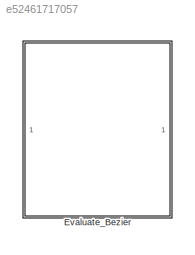
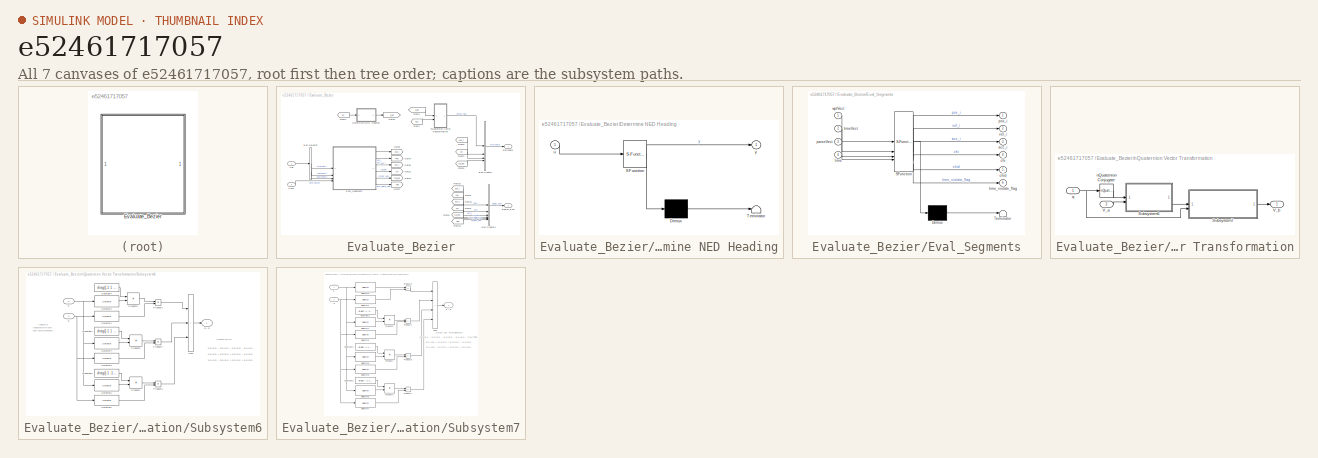
[diagram: thumbnail index - all 7 canvases of the model, root first then tree order]
MODEL slx_e52461717057
KIND library
CONFIG AbsTol = auto
CONFIG EnableMultiTasking = off
CONFIG FixedStep = auto
CONFIG MaxStep = auto
CONFIG MinStep = auto
CONFIG RelTol = 1e-3
CONFIG SampleTimeConstraint = Unconstrained
CONFIG SolverName = VariableStepAuto
CONFIG StartTime = 0.0
CONFIG StopTime = 10.0
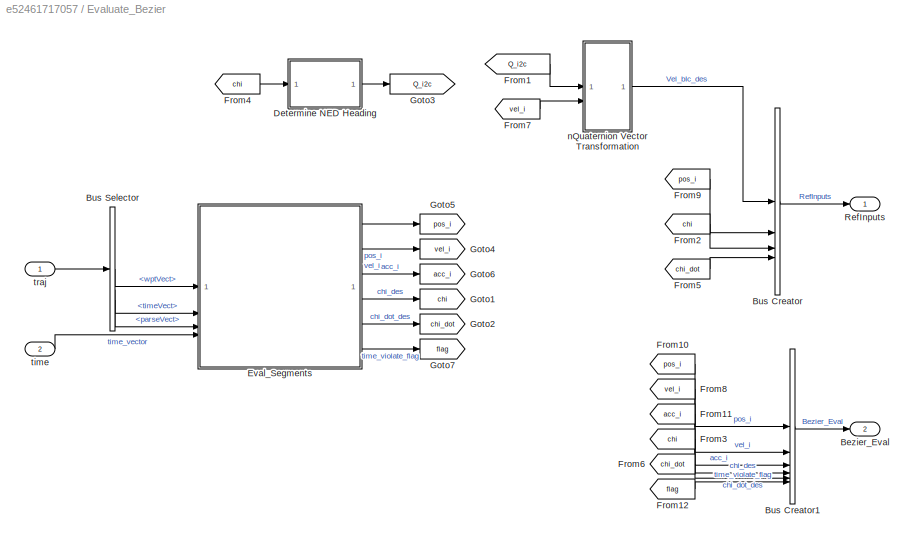
BLOCK [SubSystem] Evaluate_Bezier
BLOCK [Outport] Evaluate_Bezier/Bezier_Eval
  Port = 2
BLOCK [BusCreator] Evaluate_Bezier/Bus Creator
  DisplayOption = bar
  InheritFromInputs = on
  Inputs = 4
BLOCK [BusCreator] Evaluate_Bezier/Bus Creator1
  DisplayOption = bar
  InheritFromInputs = on
  Inputs = 6
BLOCK [BusSelector] Evaluate_Bezier/Bus Selector
  OutputSignals = wptVect,timeVect,parseVect
BLOCK [SubSystem] Evaluate_Bezier/Determine NED Heading
  ErrorFcn = Stateflow.Translate.translate
  PermitHierarchicalResolution = ExplicitOnly
  SFBlockType = MATLAB Function
  TreatAsAtomicUnit = on
BLOCK [Demux] Evaluate_Bezier/Determine NED Heading/ Demux 
  Outputs = 1
BLOCK [S-Function] Evaluate_Bezier/Determine NED Heading/ SFunction 
  EnableBusSupport = off
  FunctionName = sf_sfun
  PortCounts = [1 2]
  SFcnIsStateOwnerBlock = off
  SFunctionDeploymentMode = off
  Tag = Stateflow S-Function 4
BLOCK [Terminator] Evaluate_Bezier/Determine NED Heading/ Terminator 
BLOCK [Inport] Evaluate_Bezier/Determine NED Heading/u
BLOCK [Outport] Evaluate_Bezier/Determine NED Heading/y
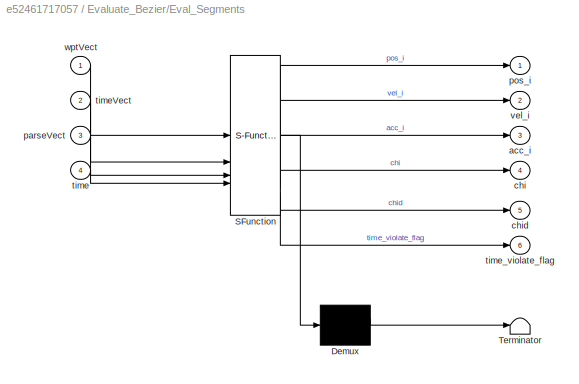
BLOCK [SubSystem] Evaluate_Bezier/Eval_Segments
  ErrorFcn = Stateflow.Translate.translate
  PermitHierarchicalResolution = ExplicitOnly
  SFBlockType = MATLAB Function
  TreatAsAtomicUnit = on
BLOCK [Demux] Evaluate_Bezier/Eval_Segments/ Demux 
  Outputs = 1
BLOCK [S-Function] Evaluate_Bezier/Eval_Segments/ SFunction 
  EnableBusSupport = off
  FunctionName = sf_sfun
  PortCounts = [4 7]
  SFcnIsStateOwnerBlock = off
  SFunctionDeploymentMode = off
  Tag = Stateflow S-Function 22
BLOCK [Terminator] Evaluate_Bezier/Eval_Segments/ Terminator 
BLOCK [Outport] Evaluate_Bezier/Eval_Segments/acc_i
  Port = 3
BLOCK [Outport] Evaluate_Bezier/Eval_Segments/chi
  Port = 4
BLOCK [Outport] Evaluate_Bezier/Eval_Segments/chid
  Port = 5
BLOCK [Inport] Evaluate_Bezier/Eval_Segments/parseVect
  Port = 3
BLOCK [Outport] Evaluate_Bezier/Eval_Segments/pos_i
BLOCK [Inport] Evaluate_Bezier/Eval_Segments/time
  Port = 4
BLOCK [Inport] Evaluate_Bezier/Eval_Segments/timeVect
  Port = 2
BLOCK [Outport] Evaluate_Bezier/Eval_Segments/time_violate_flag
  Port = 6
BLOCK [Outport] Evaluate_Bezier/Eval_Segments/vel_i
  Port = 2
BLOCK [Inport] Evaluate_Bezier/Eval_Segments/wptVect
BLOCK [From] Evaluate_Bezier/From1
  GotoTag = Q_i2c
BLOCK [From] Evaluate_Bezier/From10
  GotoTag = pos_i
BLOCK [From] Evaluate_Bezier/From11
  GotoTag = acc_i
BLOCK [From] Evaluate_Bezier/From12
  GotoTag = flag
BLOCK [From] Evaluate_Bezier/From2
  GotoTag = chi
BLOCK [From] Evaluate_Bezier/From3
  GotoTag = chi
BLOCK [From] Evaluate_Bezier/From4
  GotoTag = chi
BLOCK [From] Evaluate_Bezier/From5
  GotoTag = chi_dot
BLOCK [From] Evaluate_Bezier/From6
  GotoTag = chi_dot
BLOCK [From] Evaluate_Bezier/From7
  GotoTag = vel_i
BLOCK [From] Evaluate_Bezier/From8
  GotoTag = vel_i
BLOCK [From] Evaluate_Bezier/From9
  GotoTag = pos_i
BLOCK [Goto] Evaluate_Bezier/Goto1
  GotoTag = chi
BLOCK [Goto] Evaluate_Bezier/Goto2
  GotoTag = chi_dot
BLOCK [Goto] Evaluate_Bezier/Goto3
  GotoTag = Q_i2c
BLOCK [Goto] Evaluate_Bezier/Goto4
  GotoTag = vel_i
BLOCK [Goto] Evaluate_Bezier/Goto5
  GotoTag = pos_i
BLOCK [Goto] Evaluate_Bezier/Goto6
  GotoTag = acc_i
BLOCK [Goto] Evaluate_Bezier/Goto7
  GotoTag = flag
BLOCK [Outport] Evaluate_Bezier/RefInputs
BLOCK [SubSystem] Evaluate_Bezier/nQuaternion Vector Transformation
BLOCK [SubSystem] Evaluate_Bezier/nQuaternion Vector Transformation/Subsystem6
BLOCK [Constant] Evaluate_Bezier/nQuaternion Vector Transformation/Subsystem6/Constant1
  Value = diag([-1 1 -1 1])
  VectorParams1D = off
BLOCK [Constant] Evaluate_Bezier/nQuaternion Vector Transformation/Subsystem6/Constant3
  Value = diag([-1 -1 1 -1])
  VectorParams1D = off
BLOCK [Constant] Evaluate_Bezier/nQuaternion Vector Transformation/Subsystem6/Constant4
  Value = diag([-1 1 1 1])
  VectorParams1D = off
BLOCK [Product] Evaluate_Bezier/nQuaternion Vector Transformation/Subsystem6/Product1
  Multiplication = Matrix(*)
  RndMeth = Zero
BLOCK [Product] Evaluate_Bezier/nQuaternion Vector Transformation/Subsystem6/Product3
  RndMeth = Zero
BLOCK [Product] Evaluate_Bezier/nQuaternion Vector Transformation/Subsystem6/Product4
  RndMeth = Zero
BLOCK [Product] Evaluate_Bezier/nQuaternion Vector Transformation/Subsystem6/Product5
  Multiplication = Matrix(*)
  RndMeth = Zero
BLOCK [Product] Evaluate_Bezier/nQuaternion Vector Transformation/Subsystem6/Product6
  RndMeth = Zero
BLOCK [Product] Evaluate_Bezier/nQuaternion Vector Transformation/Subsystem6/Product8
  Multiplication = Matrix(*)
  RndMeth = Zero
BLOCK [Selector] Evaluate_Bezier/nQuaternion Vector Transformation/Subsystem6/Selector1
  IndexOptions = Index vector (dialog),Select all
  Indices = [1 1 2 3],1
  InputPortWidth = 3
  NumberOfDimensions = 2
  OutputSizes = 1,1
BLOCK [Selector] Evaluate_Bezier/nQuaternion Vector Transformation/Subsystem6/Selector2
  IndexOptions = Index vector (dialog),Select all
  Indices = [2 1 1 1],1
  InputPortWidth = 3
  NumberOfDimensions = 2
  OutputSizes = 1,1
BLOCK [Selector] Evaluate_Bezier/nQuaternion Vector Transformation/Subsystem6/Selector3
  IndexOptions = Index vector (dialog),Select all
  Indices = [2 3 3 2],1
  InputPortWidth = 3
  NumberOfDimensions = 2
  OutputSizes = 1,1
BLOCK [Selector] Evaluate_Bezier/nQuaternion Vector Transformation/Subsystem6/Selector4
  IndexOptions = Index vector (dialog),Select all
  Indices = [3 3 2 2],1
  InputPortWidth = 3
  NumberOfDimensions = 2
  OutputSizes = 1,1
BLOCK [Selector] Evaluate_Bezier/nQuaternion Vector Transformation/Subsystem6/Selector5
  IndexOptions = Index vector (dialog),Select all
  Indices = [3 2 1 1],1
  InputPortWidth = 3
  NumberOfDimensions = 2
  OutputSizes = 1,1
BLOCK [Selector] Evaluate_Bezier/nQuaternion Vector Transformation/Subsystem6/Selector6
  IndexOptions = Index vector (dialog),Select all
  Indices = [4 4 4 3],1
  InputPortWidth = 3
  NumberOfDimensions = 2
  OutputSizes = 1,1
BLOCK [Sum] Evaluate_Bezier/nQuaternion Vector Transformation/Subsystem6/Sum
  IconShape = rectangular
  Inputs = +++
BLOCK [Inport] Evaluate_Bezier/nQuaternion Vector Transformation/Subsystem6/p
  PortDimensions = [4,nQuat]
BLOCK [Outport] Evaluate_Bezier/nQuaternion Vector Transformation/Subsystem6/p * q
  PortDimensions = [4,nQuat]
BLOCK [Inport] Evaluate_Bezier/nQuaternion Vector Transformation/Subsystem6/q
  Port = 2
  PortDimensions = [3,nQuat]
BLOCK [SubSystem] Evaluate_Bezier/nQuaternion Vector Transformation/Subsystem7
BLOCK [Constant] Evaluate_Bezier/nQuaternion Vector Transformation/Subsystem7/Constant1
  Value = diag([ 1 -1 1])
  VectorParams1D = off
BLOCK [Constant] Evaluate_Bezier/nQuaternion Vector Transformation/Subsystem7/Constant2
  Value = diag([ -1 1 1])
  VectorParams1D = off
BLOCK [Constant] Evaluate_Bezier/nQuaternion Vector Transformation/Subsystem7/Constant3
  Value = diag([ 1 1 -1])
  VectorParams1D = off
BLOCK [Product] Evaluate_Bezier/nQuaternion Vector Transformation/Subsystem7/Product1
  Multiplication = Matrix(*)
  RndMeth = Zero
BLOCK [Product] Evaluate_Bezier/nQuaternion Vector Transformation/Subsystem7/Product2
  Multiplication = Matrix(*)
  RndMeth = Zero
BLOCK [Product] Evaluate_Bezier/nQuaternion Vector Transformation/Subsystem7/Product3
  RndMeth = Zero
BLOCK [Product] Evaluate_Bezier/nQuaternion Vector Transformation/Subsystem7/Product4
  RndMeth = Zero
BLOCK [Product] Evaluate_Bezier/nQuaternion Vector Transformation/Subsystem7/Product5
  Multiplication = Matrix(*)
  RndMeth = Zero
BLOCK [Product] Evaluate_Bezier/nQuaternion Vector Transformation/Subsystem7/Product6
  RndMeth = Zero
BLOCK [Product] Evaluate_Bezier/nQuaternion Vector Transformation/Subsystem7/Product7
  RndMeth = Zero
BLOCK [Selector] Evaluate_Bezier/nQuaternion Vector Transformation/Subsystem7/Selector1
  IndexOptions = Index vector (dialog),Select all
  Indices = [ 2 3 4],1
  InputPortWidth = 3
  NumberOfDimensions = 2
  OutputSizes = 1,1
BLOCK [Selector] Evaluate_Bezier/nQuaternion Vector Transformation/Subsystem7/Selector2
  IndexOptions = Index vector (dialog),Select all
  Indices = [ 1 1 1],1
  InputPortWidth = 3
  NumberOfDimensions = 2
  OutputSizes = 1,1
BLOCK [Selector] Evaluate_Bezier/nQuaternion Vector Transformation/Subsystem7/Selector3
  IndexOptions = Index vector (dialog),Select all
  Indices = [ 1 4 3],1
  InputPortWidth = 3
  NumberOfDimensions = 2
  OutputSizes = 1,1
BLOCK [Selector] Evaluate_Bezier/nQuaternion Vector Transformation/Subsystem7/Selector4
  IndexOptions = Index vector (dialog),Select all
  Indices = [ 2 2 2],1
  InputPortWidth = 3
  NumberOfDimensions = 2
  OutputSizes = 1,1
BLOCK [Selector] Evaluate_Bezier/nQuaternion Vector Transformation/Subsystem7/Selector5
  IndexOptions = Index vector (dialog),Select all
  Indices = [ 4 1 2],1
  InputPortWidth = 3
  NumberOfDimensions = 2
  OutputSizes = 1,1
BLOCK [Selector] Evaluate_Bezier/nQuaternion Vector Transformation/Subsystem7/Selector6
  IndexOptions = Index vector (dialog),Select all
  Indices = [ 3 3 3],1
  InputPortWidth = 3
  NumberOfDimensions = 2
  OutputSizes = 1,1
BLOCK [Selector] Evaluate_Bezier/nQuaternion Vector Transformation/Subsystem7/Selector7
  IndexOptions = Index vector (dialog),Select all
  Indices = [ 3 2 1],1
  InputPortWidth = 3
  NumberOfDimensions = 2
  OutputSizes = 1,1
BLOCK [Selector] Evaluate_Bezier/nQuaternion Vector Transformation/Subsystem7/Selector8
  IndexOptions = Index vector (dialog),Select all
  Indices = [4 4 4],1
  InputPortWidth = 3
  NumberOfDimensions = 2
  OutputSizes = 1,1
BLOCK [Sum] Evaluate_Bezier/nQuaternion Vector Transformation/Subsystem7/Sum
  IconShape = rectangular
  Inputs = ++++
BLOCK [Inport] Evaluate_Bezier/nQuaternion Vector Transformation/Subsystem7/p
  PortDimensions = [4,nQuat]
BLOCK [Outport] Evaluate_Bezier/nQuaternion Vector Transformation/Subsystem7/p * q
  PortDimensions = [3,nQuat]
BLOCK [Inport] Evaluate_Bezier/nQuaternion Vector Transformation/Subsystem7/q
  Port = 2
  PortDimensions = [4,nQuat]
BLOCK [Inport] Evaluate_Bezier/nQuaternion Vector Transformation/V_a
  Port = 2
  PortDimensions = [3,tlen_max]
  VarSizeSig = No
BLOCK [Outport] Evaluate_Bezier/nQuaternion Vector Transformation/V_b
  PortDimensions = [3,tlen_max]
  VarSizeSig = No
BLOCK [Reference] Evaluate_Bezier/nQuaternion Vector Transformation/nQuaternion Conjugate  REF=starslibMathOperations/nQuaternion Conjugate
  SourceBlock = starslibMathOperations/nQuaternion Conjugate
  SourceProductName = STARS Blockset
  SourceType = nQuaternion Conjugate
BLOCK [Inport] Evaluate_Bezier/nQuaternion Vector Transformation/q
  PortDimensions = [4,tlen_max]
  VarSizeSig = No
BLOCK [Inport] Evaluate_Bezier/time
  Port = 2
BLOCK [Inport] Evaluate_Bezier/traj
ANNOTATION Evaluate_Bezier/nQuaternion Vector Transformation/Subsystem6: Assume q inputted with only last three elements
ANNOTATION Evaluate_Bezier/nQuaternion Vector Transformation/Subsystem6: Assume q(1)=0
ANNOTATION Evaluate_Bezier/nQuaternion Vector Transformation/Subsystem6: p(1)*q(1) - p(2)*q(2) - p(3)*q(3) - p(4)*q(4) p(1)*q(2) + p(2)*q(1) + p(3)*q(4) - p(4)*q(3) p(1)*q(3) - p(2)*q(4) + p(3)*q(1) + p(4)*q(2) p(1)*q(4) + p(2)*q(3) - p(3)*q(2) + p(4)*q(1)
ANNOTATION Evaluate_Bezier/nQuaternion Vector Transformation/Subsystem7: Output Last Three Elements
ANNOTATION Evaluate_Bezier/nQuaternion Vector Transformation/Subsystem7: p(1)*q(1) - p(2)*q(2) - p(3)*q(3) - p(4)*q(4) : OMITTED p(1)*q(2) + p(2)*q(1) + p(3)*q(4) - p(4)*q(3) p(1)*q(3) - p(2)*q(4) + p(3)*q(1) + p(4)*q(2) p(1)*q(4) + p(2)*q(3) - p(3)*q(2) + p(4)*q(1)
LINE Evaluate_Bezier/Bus Creator1:1 -> Evaluate_Bezier/Bezier_Eval:1
LINE Evaluate_Bezier/Bus Creator:1 -> Evaluate_Bezier/RefInputs:1
LINE Evaluate_Bezier/Bus Selector:1 -> Evaluate_Bezier/Eval_Segments:1
LINE Evaluate_Bezier/Bus Selector:2 -> Evaluate_Bezier/Eval_Segments:2
LINE Evaluate_Bezier/Bus Selector:3 -> Evaluate_Bezier/Eval_Segments:3
LINE Evaluate_Bezier/Determine NED Heading:1 -> Evaluate_Bezier/Goto3:1
LINE Evaluate_Bezier/Eval_Segments:1 -> Evaluate_Bezier/Goto5:1
LINE Evaluate_Bezier/Eval_Segments:2 -> Evaluate_Bezier/Goto4:1
LINE Evaluate_Bezier/Eval_Segments:3 -> Evaluate_Bezier/Goto6:1
LINE Evaluate_Bezier/Eval_Segments:4 -> Evaluate_Bezier/Goto1:1
LINE Evaluate_Bezier/Eval_Segments:5 -> Evaluate_Bezier/Goto2:1
LINE Evaluate_Bezier/Eval_Segments:6 -> Evaluate_Bezier/Goto7:1
LINE Evaluate_Bezier/From10:1 -> Evaluate_Bezier/Bus Creator1:1
LINE Evaluate_Bezier/From11:1 -> Evaluate_Bezier/Bus Creator1:3
LINE Evaluate_Bezier/From12:1 -> Evaluate_Bezier/Bus Creator1:6
LINE Evaluate_Bezier/From1:1 -> Evaluate_Bezier/nQuaternion Vector Transformation:1
LINE Evaluate_Bezier/From2:1 -> Evaluate_Bezier/Bus Creator:3
LINE Evaluate_Bezier/From3:1 -> Evaluate_Bezier/Bus Creator1:4
LINE Evaluate_Bezier/From4:1 -> Evaluate_Bezier/Determine NED Heading:1
LINE Evaluate_Bezier/From5:1 -> Evaluate_Bezier/Bus Creator:4
LINE Evaluate_Bezier/From6:1 -> Evaluate_Bezier/Bus Creator1:5
LINE Evaluate_Bezier/From7:1 -> Evaluate_Bezier/nQuaternion Vector Transformation:2
LINE Evaluate_Bezier/From8:1 -> Evaluate_Bezier/Bus Creator1:2
LINE Evaluate_Bezier/From9:1 -> Evaluate_Bezier/Bus Creator:2
LINE Evaluate_Bezier/nQuaternion Vector Transformation/Subsystem6/Constant1:1 -> Evaluate_Bezier/nQuaternion Vector Transformation/Subsystem6/Product5:1
LINE Evaluate_Bezier/nQuaternion Vector Transformation/Subsystem6/Constant3:1 -> Evaluate_Bezier/nQuaternion Vector Transformation/Subsystem6/Product1:1
LINE Evaluate_Bezier/nQuaternion Vector Transformation/Subsystem6/Constant4:1 -> Evaluate_Bezier/nQuaternion Vector Transformation/Subsystem6/Product8:1
LINE Evaluate_Bezier/nQuaternion Vector Transformation/Subsystem6/Product1:1 -> Evaluate_Bezier/nQuaternion Vector Transformation/Subsystem6/Product6:1
LINE Evaluate_Bezier/nQuaternion Vector Transformation/Subsystem6/Product3:1 -> Evaluate_Bezier/nQuaternion Vector Transformation/Subsystem6/Sum:1
LINE Evaluate_Bezier/nQuaternion Vector Transformation/Subsystem6/Product4:1 -> Evaluate_Bezier/nQuaternion Vector Transformation/Subsystem6/Sum:2
LINE Evaluate_Bezier/nQuaternion Vector Transformation/Subsystem6/Product5:1 -> Evaluate_Bezier/nQuaternion Vector Transformation/Subsystem6/Product4:1
LINE Evaluate_Bezier/nQuaternion Vector Transformation/Subsystem6/Product6:1 -> Evaluate_Bezier/nQuaternion Vector Transformation/Subsystem6/Sum:3
LINE Evaluate_Bezier/nQuaternion Vector Transformation/Subsystem6/Product8:1 -> Evaluate_Bezier/nQuaternion Vector Transformation/Subsystem6/Product3:1
LINE Evaluate_Bezier/nQuaternion Vector Transformation/Subsystem6/Selector1:1 -> Evaluate_Bezier/nQuaternion Vector Transformation/Subsystem6/Product3:2
LINE Evaluate_Bezier/nQuaternion Vector Transformation/Subsystem6/Selector2:1 -> Evaluate_Bezier/nQuaternion Vector Transformation/Subsystem6/Product8:2
LINE Evaluate_Bezier/nQuaternion Vector Transformation/Subsystem6/Selector3:1 -> Evaluate_Bezier/nQuaternion Vector Transformation/Subsystem6/Product4:2
LINE Evaluate_Bezier/nQuaternion Vector Transformation/Subsystem6/Selector4:1 -> Evaluate_Bezier/nQuaternion Vector Transformation/Subsystem6/Product5:2
LINE Evaluate_Bezier/nQuaternion Vector Transformation/Subsystem6/Selector5:1 -> Evaluate_Bezier/nQuaternion Vector Transformation/Subsystem6/Product6:2
LINE Evaluate_Bezier/nQuaternion Vector Transformation/Subsystem6/Selector6:1 -> Evaluate_Bezier/nQuaternion Vector Transformation/Subsystem6/Product1:2
LINE Evaluate_Bezier/nQuaternion Vector Transformation/Subsystem6/Sum:1 -> Evaluate_Bezier/nQuaternion Vector Transformation/Subsystem6/p * q:1
NET Evaluate_Bezier/nQuaternion Vector Transformation/Subsystem6/p:1 -> Evaluate_Bezier/nQuaternion Vector Transformation/Subsystem6/Selector2:1, Evaluate_Bezier/nQuaternion Vector Transformation/Subsystem6/Selector4:1, Evaluate_Bezier/nQuaternion Vector Transformation/Subsystem6/Selector6:1
NET Evaluate_Bezier/nQuaternion Vector Transformation/Subsystem6/q:1 -> Evaluate_Bezier/nQuaternion Vector Transformation/Subsystem6/Selector1:1, Evaluate_Bezier/nQuaternion Vector Transformation/Subsystem6/Selector3:1, Evaluate_Bezier/nQuaternion Vector Transformation/Subsystem6/Selector5:1
LINE Evaluate_Bezier/nQuaternion Vector Transformation/Subsystem6:1 -> Evaluate_Bezier/nQuaternion Vector Transformation/Subsystem7:1
LINE Evaluate_Bezier/nQuaternion Vector Transformation/Subsystem7/Constant1:1 -> Evaluate_Bezier/nQuaternion Vector Transformation/Subsystem7/Product5:1
LINE Evaluate_Bezier/nQuaternion Vector Transformation/Subsystem7/Constant2:1 -> Evaluate_Bezier/nQuaternion Vector Transformation/Subsystem7/Product2:1
LINE Evaluate_Bezier/nQuaternion Vector Transformation/Subsystem7/Constant3:1 -> Evaluate_Bezier/nQuaternion Vector Transformation/Subsystem7/Product1:1
LINE Evaluate_Bezier/nQuaternion Vector Transformation/Subsystem7/Product1:1 -> Evaluate_Bezier/nQuaternion Vector Transformation/Subsystem7/Product6:1
LINE Evaluate_Bezier/nQuaternion Vector Transformation/Subsystem7/Product2:1 -> Evaluate_Bezier/nQuaternion Vector Transformation/Subsystem7/Product7:1
LINE Evaluate_Bezier/nQuaternion Vector Transformation/Subsystem7/Product3:1 -> Evaluate_Bezier/nQuaternion Vector Transformation/Subsystem7/Sum:1
LINE Evaluate_Bezier/nQuaternion Vector Transformation/Subsystem7/Product4:1 -> Evaluate_Bezier/nQuaternion Vector Transformation/Subsystem7/Sum:2
LINE Evaluate_Bezier/nQuaternion Vector Transformation/Subsystem7/Product5:1 -> Evaluate_Bezier/nQuaternion Vector Transformation/Subsystem7/Product4:1
LINE Evaluate_Bezier/nQuaternion Vector Transformation/Subsystem7/Product6:1 -> Evaluate_Bezier/nQuaternion Vector Transformation/Subsystem7/Sum:3
LINE Evaluate_Bezier/nQuaternion Vector Transformation/Subsystem7/Product7:1 -> Evaluate_Bezier/nQuaternion Vector Transformation/Subsystem7/Sum:4
LINE Evaluate_Bezier/nQuaternion Vector Transformation/Subsystem7/Selector1:1 -> Evaluate_Bezier/nQuaternion Vector Transformation/Subsystem7/Product3:2
LINE Evaluate_Bezier/nQuaternion Vector Transformation/Subsystem7/Selector2:1 -> Evaluate_Bezier/nQuaternion Vector Transformation/Subsystem7/Product3:1
LINE Evaluate_Bezier/nQuaternion Vector Transformation/Subsystem7/Selector3:1 -> Evaluate_Bezier/nQuaternion Vector Transformation/Subsystem7/Product4:2
LINE Evaluate_Bezier/nQuaternion Vector Transformation/Subsystem7/Selector4:1 -> Evaluate_Bezier/nQuaternion Vector Transformation/Subsystem7/Product5:2
LINE Evaluate_Bezier/nQuaternion Vector Transformation/Subsystem7/Selector5:1 -> Evaluate_Bezier/nQuaternion Vector Transformation/Subsystem7/Product6:2
LINE Evaluate_Bezier/nQuaternion Vector Transformation/Subsystem7/Selector6:1 -> Evaluate_Bezier/nQuaternion Vector Transformation/Subsystem7/Product1:2
LINE Evaluate_Bezier/nQuaternion Vector Transformation/Subsystem7/Selector7:1 -> Evaluate_Bezier/nQuaternion Vector Transformation/Subsystem7/Product7:2
LINE Evaluate_Bezier/nQuaternion Vector Transformation/Subsystem7/Selector8:1 -> Evaluate_Bezier/nQuaternion Vector Transformation/Subsystem7/Product2:2
LINE Evaluate_Bezier/nQuaternion Vector Transformation/Subsystem7/Sum:1 -> Evaluate_Bezier/nQuaternion Vector Transformation/Subsystem7/p * q:1
NET Evaluate_Bezier/nQuaternion Vector Transformation/Subsystem7/p:1 -> Evaluate_Bezier/nQuaternion Vector Transformation/Subsystem7/Selector2:1, Evaluate_Bezier/nQuaternion Vector Transformation/Subsystem7/Selector4:1, Evaluate_Bezier/nQuaternion Vector Transformation/Subsystem7/Selector6:1, Evaluate_Bezier/nQuaternion Vector Transformation/Subsystem7/Selector8:1
NET Evaluate_Bezier/nQuaternion Vector Transformation/Subsystem7/q:1 -> Evaluate_Bezier/nQuaternion Vector Transformation/Subsystem7/Selector1:1, Evaluate_Bezier/nQuaternion Vector Transformation/Subsystem7/Selector3:1, Evaluate_Bezier/nQuaternion Vector Transformation/Subsystem7/Selector5:1, Evaluate_Bezier/nQuaternion Vector Transformation/Subsystem7/Selector7:1
LINE Evaluate_Bezier/nQuaternion Vector Transformation/Subsystem7:1 -> Evaluate_Bezier/nQuaternion Vector Transformation/V_b:1
LINE Evaluate_Bezier/nQuaternion Vector Transformation/V_a:1 -> Evaluate_Bezier/nQuaternion Vector Transformation/Subsystem6:2
LINE Evaluate_Bezier/nQuaternion Vector Transformation/nQuaternion Conjugate:1 -> Evaluate_Bezier/nQuaternion Vector Transformation/Subsystem6:1
NET Evaluate_Bezier/nQuaternion Vector Transformation/q:1 -> Evaluate_Bezier/nQuaternion Vector Transformation/Subsystem7:2, Evaluate_Bezier/nQuaternion Vector Transformation/nQuaternion Conjugate:1
LINE Evaluate_Bezier/nQuaternion Vector Transformation:1 -> Evaluate_Bezier/Bus Creator:1
LINE Evaluate_Bezier/time:1 -> Evaluate_Bezier/Eval_Segments:4
LINE Evaluate_Bezier/traj:1 -> Evaluate_Bezier/Bus Selector:1
note: NET lines group one-source signal fan-out (src -> all destinations, sorted); 1:1 wires keep LINE
CHART Evaluate_Bezier/Determine NED Heading states=1 transitions=1
  STATE_LABEL 'eML_blk_kernel()'
  STATE_LABEL 'SCRIPT:\nfunction y = fcn(u)\n\ny = determineNedHeading(u);\n\nend\n'
CHART Evaluate_Bezier/Eval_Segments states=1 transitions=1
  STATE_LABEL 'eML_blk_kernel()'
  STATE_LABEL 'SCRIPT:\nfunction [pos_i, vel_i, acc_i, chi, chid, time_violate_flag] = eval_Segments(wptVect, timeVect, parseVect, time)\n\n[wptCellArray, timeCellArray] = decodeBezierArray(wptVect, timeVect, parseVect);\n\n[pos_i, vel_i, acc_i, chi, chid, time_violate_flag] = evalSegments(wptCellArray{1},...\n    wptCellArray{2}, wptCellArray{3}, timeCellArray{1},...\n    timeCellArray{2}, timeCellArray{3}, time);\n\nen...<+2ch>'
CHART  states=0 transitions=0
CHART  states=0 transitions=0
